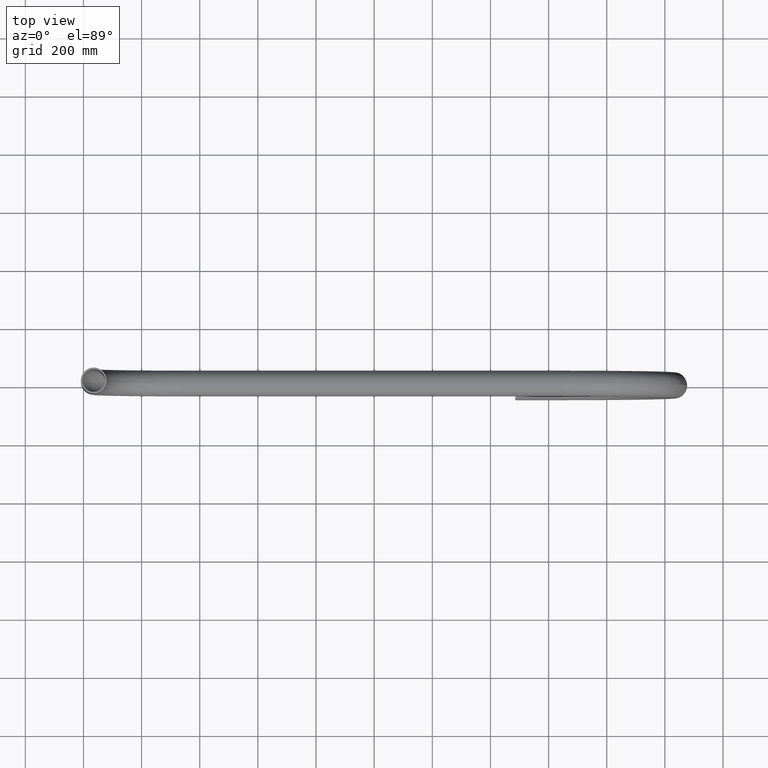
[diagram: clean part render]
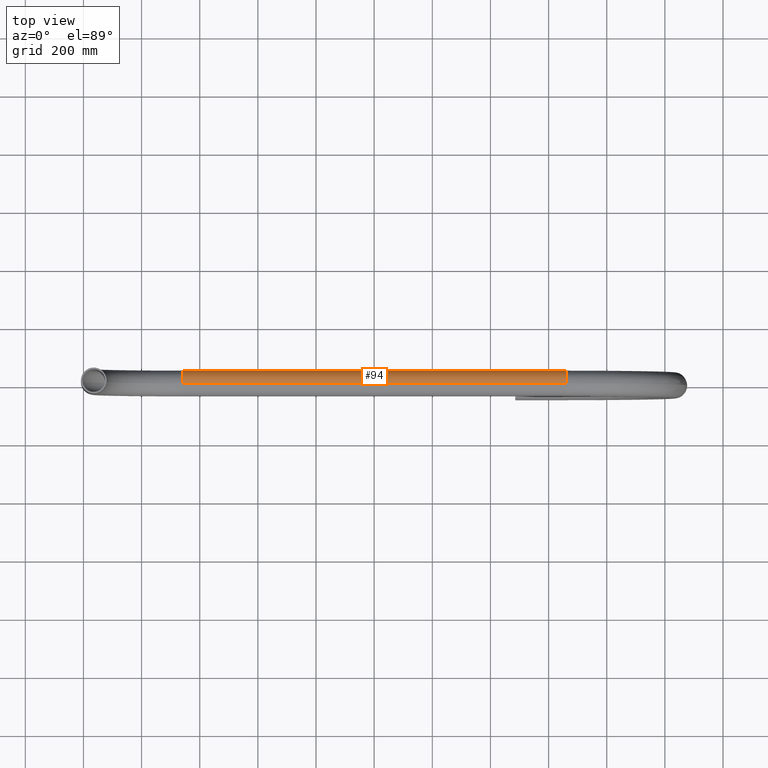
[diagram: same view with one face highlighted and labeled with its STEP entity id]
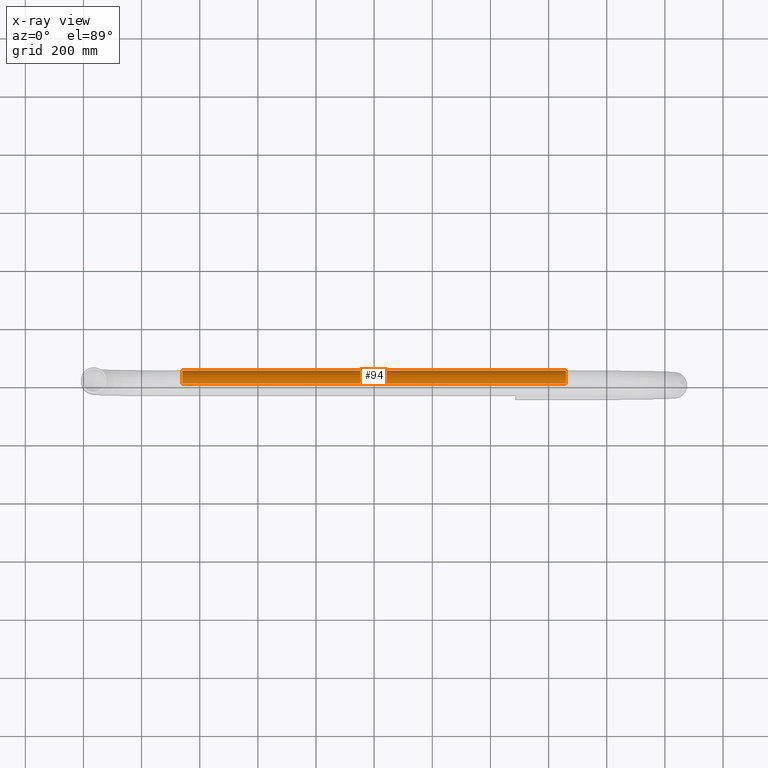
[diagram: x-ray of the same camera — body ghosted, the highlighted face saturated]
A machine part, top view. The second image highlights one B-rep face of the part: STEP entity #94.
The next image is the same camera in x-ray: the body ghosted, the highlighted face saturated — about 0% of this face is hidden behind the body in this view.
In plain terms, the highlighted cylindrical surface (edge-blend (fillet) strip) has radius 44.45 mm, axis along (-1, -0, 0).
Its self-contained STEP definition (entity closure, byte-faithful):
#7 = EDGE_LOOP ( 'NONE', ( #313, #25, #97, #47 ) ) ;
#11 = VERTEX_POINT ( 'NONE', #35 ) ;
#25 = ORIENTED_EDGE ( 'NONE', *, *, #378, .T. ) ;
#35 = CARTESIAN_POINT ( 'NONE',  ( -659.5000000000000000, 0.000000000000000000, 44.45000000000000995 ) ) ;
#47 = ORIENTED_EDGE ( 'NONE', *, *, #565, .F. ) ;
#84 = DIRECTION ( 'NONE',  ( 0.000000000000000000, 0.000000000000000000, 1.000000000000000000 ) ) ;
#92 = DIRECTION ( 'NONE',  ( -1.000000000000000000, -0.000000000000000000, 6.123233995736768501E-17 ) ) ;
#94 = ADVANCED_FACE ( 'NONE', ( #135 ), #179, .T. ) ;
#95 = EDGE_CURVE ( 'NONE', #369, #296, #128, .T. ) ;
#97 = ORIENTED_EDGE ( 'NONE', *, *, #162, .T. ) ;
#98 = CARTESIAN_POINT ( 'NONE',  ( -659.5000000000000000, 0.000000000000000000, 0.000000000000000000 ) ) ;
#101 = DIRECTION ( 'NONE',  ( 0.000000000000000000, 0.000000000000000000, -1.000000000000000000 ) ) ;
#120 = DIRECTION ( 'NONE',  ( -1.000000000000000000, -0.000000000000000000, 6.123233995736768501E-17 ) ) ;
#128 = CIRCLE ( 'NONE', #273, 44.45000000000000995 ) ;
#129 = VECTOR ( 'NONE', #120, 1000.000000000000000 ) ;
#131 = LINE ( 'NONE', #626, #129 ) ;
#132 = DIRECTION ( 'NONE',  ( 0.000000000000000000, 0.000000000000000000, 1.000000000000000000 ) ) ;
#134 = LINE ( 'NONE', #593, #526 ) ;
#135 = FACE_OUTER_BOUND ( 'NONE', #7, .T. ) ;
#137 = DIRECTION ( 'NONE',  ( -1.000000000000000000, -0.000000000000000000, 6.123233995736768501E-17 ) ) ;
#162 = EDGE_CURVE ( 'NONE', #459, #11, #637, .T. ) ;
#179 = CYLINDRICAL_SURFACE ( 'NONE', #416, 44.45000000000000995 ) ;
#211 = AXIS2_PLACEMENT_3D ( 'NONE', #98, #298, #101 ) ;
#273 = AXIS2_PLACEMENT_3D ( 'NONE', #531, #635, #84 ) ;
#296 = VERTEX_POINT ( 'NONE', #312 ) ;
#298 = DIRECTION ( 'NONE',  ( 1.000000000000000000, 0.000000000000000000, -1.820037745287141918E-16 ) ) ;
#312 = CARTESIAN_POINT ( 'NONE',  ( 659.5000000000000000, 0.000000000000000000, 44.44999999999995310 ) ) ;
#313 = ORIENTED_EDGE ( 'NONE', *, *, #95, .F. ) ;
#369 = VERTEX_POINT ( 'NONE', #424 ) ;
#378 = EDGE_CURVE ( 'NONE', #369, #459, #131, .T. ) ;
#416 = AXIS2_PLACEMENT_3D ( 'NONE', #542, #137, #132 ) ;
#424 = CARTESIAN_POINT ( 'NONE',  ( 659.5000000000000000, 5.443555022209997530E-15, -44.45000000000006679 ) ) ;
#436 = CARTESIAN_POINT ( 'NONE',  ( -659.5000000000000000, 5.443555022209989642E-15, -44.45000000000000995 ) ) ;
#459 = VERTEX_POINT ( 'NONE', #436 ) ;
#526 = VECTOR ( 'NONE', #92, 1000.000000000000000 ) ;
#531 = CARTESIAN_POINT ( 'NONE',  ( 659.5000000000000000, 0.000000000000000000, -5.551115123125782702E-14 ) ) ;
#542 = CARTESIAN_POINT ( 'NONE',  ( 659.4999999999998863, 0.000000000000000000, -2.465190328815661892E-29 ) ) ;
#565 = EDGE_CURVE ( 'NONE', #296, #11, #134, .T. ) ;
#593 = CARTESIAN_POINT ( 'NONE',  ( 659.4999999999998863, 0.000000000000000000, 44.45000000000000995 ) ) ;
#626 = CARTESIAN_POINT ( 'NONE',  ( 659.4999999999998863, 5.443555022209984909E-15, -44.45000000000000995 ) ) ;
#635 = DIRECTION ( 'NONE',  ( 1.000000000000000000, 0.000000000000000000, -6.123233995736768501E-17 ) ) ;
#637 = CIRCLE ( 'NONE', #211, 44.45000000000000995 ) ;